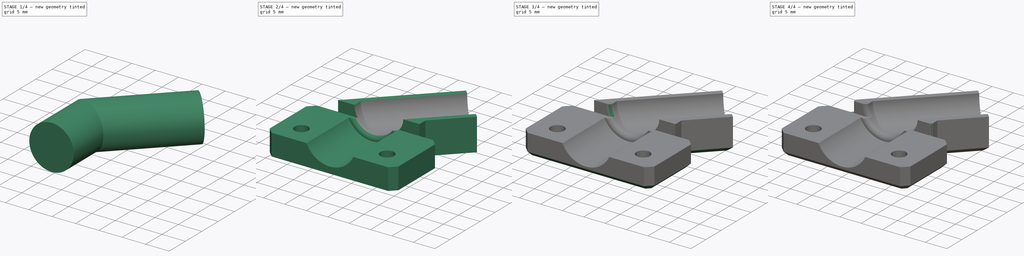
[diagram: build sequence overview — one tinted view per stage of 4, left to right]
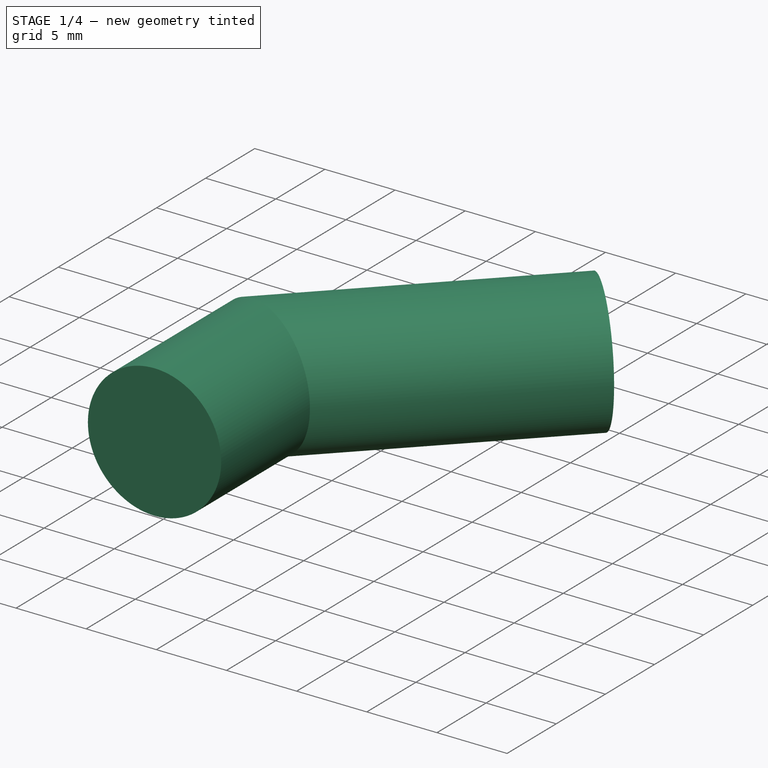
[diagram: stage 1 of 4 — iso view after this stage's code; geometry added in this stage tinted green]
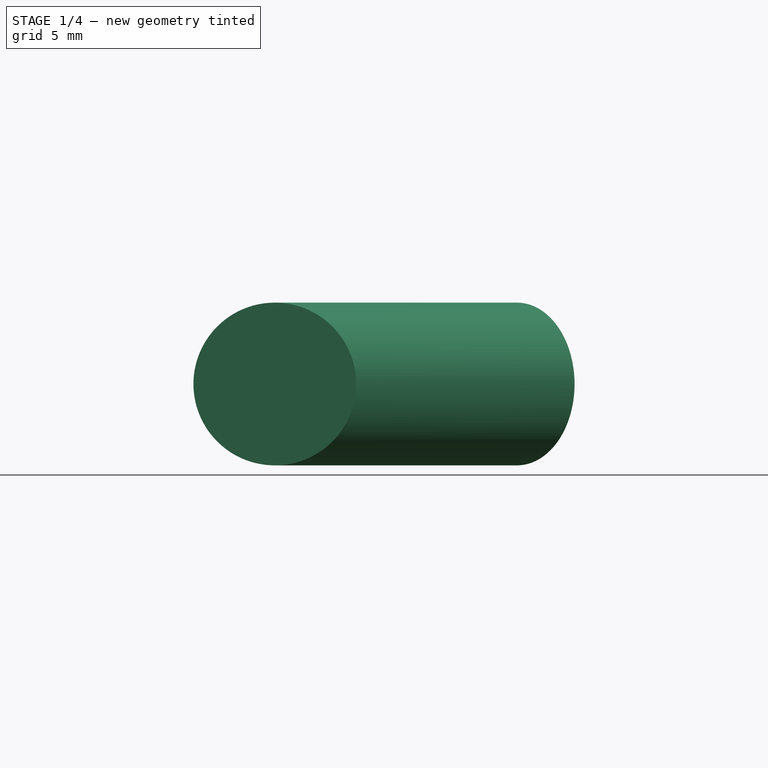
[diagram: stage 1 of 4 — front view after this stage's code; geometry added in this stage tinted green]
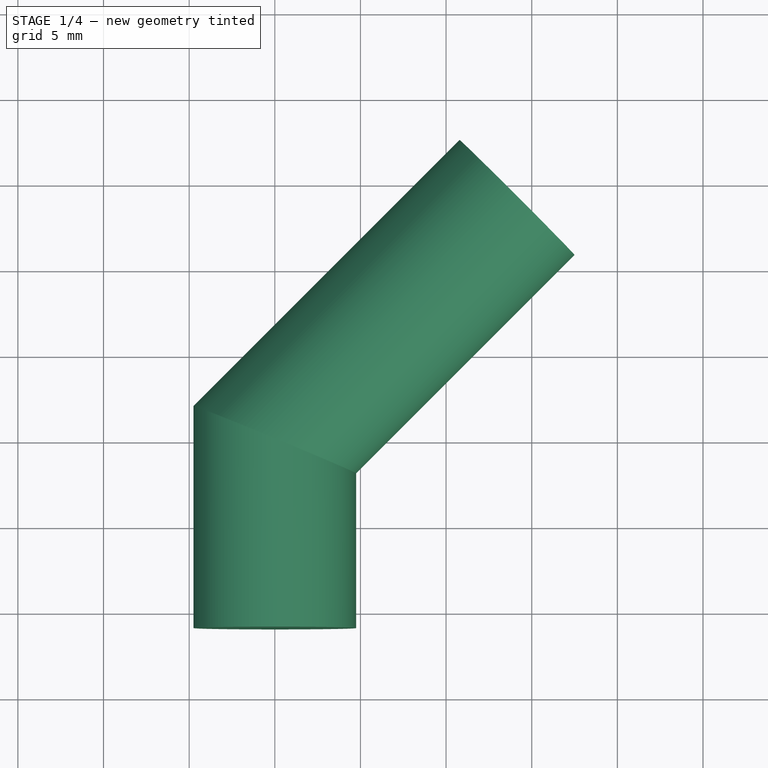
[diagram: stage 1 of 4 — top view after this stage's code; geometry added in this stage tinted green]
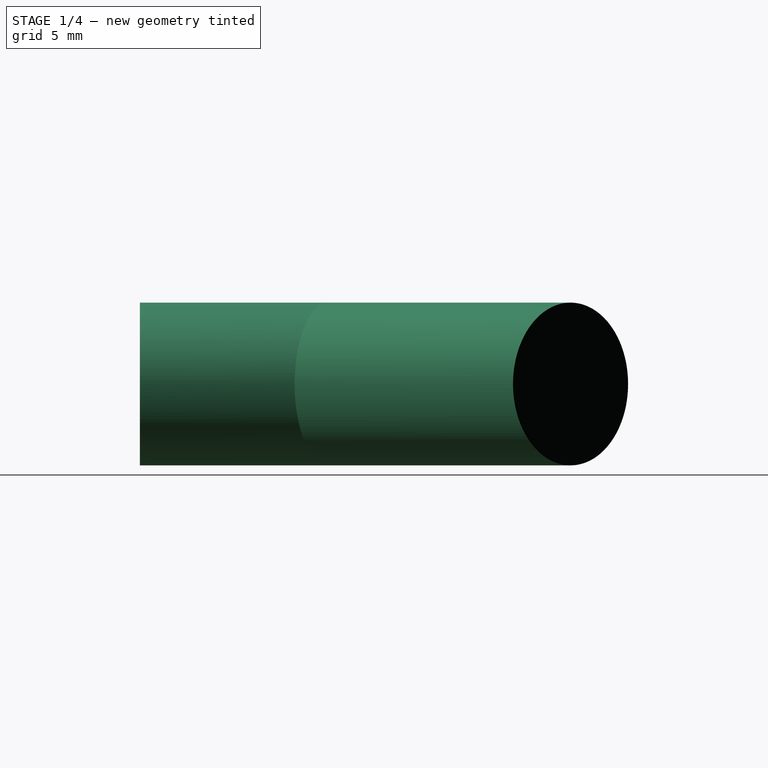
[diagram: stage 1 of 4 — right view after this stage's code; geometry added in this stage tinted green]
FCSTD DOCUMENT  (FreeCAD 0.16R6707 (Git))
Label: cables_soporte_titan
License: CreativeCommons Attribution-NonCommercial-ShareAlike
LicenseURL: http://creativecommons.org/licenses/by-nc-sa/4.0/
objects: Sketcher::SketchObject×5, PartDesign::Fillet×4, PartDesign::Pad×2, PartDesign::Chamfer×2, Part::Sweep×1, Part::Cut×1, PartDesign::Pocket×1
note: 19 computed .brp shape members not serialized (recipe doc carries the construction recipe); baked Part::Feature solids carry a one-line shape summary decoded from their .brp

FEATURE [Sketcher::SketchObject] Sketch
  sketch-geometry (15):
    g0: Circle CenterX=-10 CenterY=-5.2 CenterZ=0 NormalX=0 NormalY=0 NormalZ=1 Radius=1.6
    g1: Circle CenterX=10 CenterY=-5.2 CenterZ=0 NormalX=0 NormalY=0 NormalZ=1 Radius=1.6
    g2: LineSegment StartX=-15 StartY=3.58579 StartZ=0 EndX=-15 EndY=-8.58579 EndZ=0
    g3: LineSegment StartX=-15 StartY=-8.58579 StartZ=0 EndX=-13.5858 EndY=-10 EndZ=0
    g4: LineSegment StartX=-13.5858 StartY=-10 StartZ=0 EndX=13.5858 EndY=-10 EndZ=0
    g5: LineSegment StartX=13.5858 StartY=-10 StartZ=0 EndX=15 EndY=-8.58579 EndZ=0
    g6: LineSegment StartX=15 StartY=-8.58579 StartZ=0 EndX=15 EndY=3.58579 EndZ=0
    g7: LineSegment StartX=15 StartY=3.58579 StartZ=0 EndX=13.5858 EndY=5 EndZ=0
    g8: LineSegment StartX=13.5858 StartY=5 StartZ=0 EndX=10.3848 EndY=5 EndZ=0
    g9: LineSegment StartX=10.3848 StartY=5 StartZ=0 EndX=10.3848 EndY=7 EndZ=0
    g10: LineSegment StartX=10.3848 StartY=7 StartZ=0 EndX=17.4558 EndY=14.0711 EndZ=0
    g11: LineSegment StartX=17.4558 StartY=14.0711 StartZ=0 EndX=8.97056 EndY=22.5563 EndZ=0
    g12: LineSegment StartX=8.97056 StartY=22.5563 StartZ=0 EndX=-8.58579 EndY=5 EndZ=0
    g13: LineSegment StartX=-8.58579 StartY=5 StartZ=0 EndX=-13.5858 EndY=5 EndZ=0
    g14: LineSegment StartX=-13.5858 StartY=5 StartZ=0 EndX=-15 EndY=3.58579 EndZ=0
  constraints (43):
    c: DistanceX(g0,g-1) = 10
    c: Radius(g1) = 1.6
    c: Vertical(g2)
    c: Coincident(g2,g3)
    c: Coincident(g3,g4)
    c: Horizontal(g4)
    c: Coincident(g4,g5)
    c: Coincident(g5,g6)
    c: Vertical(g6)
    c: Coincident(g6,g7)
    c: Coincident(g7,g8)
    c: Horizontal(g8)
    c: Coincident(g8,g9)
    c: Coincident(g9,g10)
    c: Coincident(g10,g11)
    c: Coincident(g11,g12)
    c: Coincident(g12,g13)
    c: Horizontal(g13)
    c: Coincident(g13,g14)
    c: Coincident(g14,g2)
    c: Parallel(g12,g10)
    c: Perpendicular(g11,g12)
    c: Equal(g5,g14)
    c: Equal(g14,g3)
    c: Equal(g3,g7)
    c: Parallel(g3,g7)
    c: Parallel(g14,g5)
    c: Perpendicular(g5,g7)
    c: Symmetric(g13,g7,g-2)
    c: Angle(g4,g3) = 2.35619
    c: Equal(g0,g1)
    c: Distance(g11) = 12
    c: Vertical(g9)
    c: DistanceX(g2,g0) = 5
    c: DistanceY(g9,g9) = 2
    c: Distance(g10) = 10
    c: Distance(g14) = 2
    c: DistanceX(g13,g13) = 5
    c: Angle(g12,g13) = 2.35619
    c: Symmetric(g1,g0,g-2)
    c: DistanceY(g-1,g13) = 5
    c: DistanceY(g3,g-1) = 10
    c: DistanceY(g0,g-1) = 5.2
FEATURE [PartDesign::Pad] Pad
  Length = 5
  Length2 = 100
  Sketch = -> Sketch
  Type = 0
FEATURE [Sketcher::SketchObject] Sketch001
  ExternalGeometry = -> [Pad]
  Placement = pos=(0,0,5) rot=(0,0,1;0rad)
  Support = -> Pad [Face17]
  sketch-geometry (5):
    g0: LineSegment StartX=-8.58579 StartY=5 StartZ=0 EndX=8.97056 EndY=22.5563 EndZ=0
    g1: LineSegment StartX=8.97056 StartY=22.5563 StartZ=0 EndX=17.4558 EndY=14.0711 EndZ=0
    g2: LineSegment StartX=17.4558 StartY=14.0711 StartZ=0 EndX=10.3848 EndY=7 EndZ=0
    g3: LineSegment StartX=10.3848 StartY=7 StartZ=0 EndX=10.3848 EndY=5 EndZ=0
    g4: LineSegment StartX=10.3848 StartY=5 StartZ=0 EndX=-8.58579 EndY=5 EndZ=0
  constraints (10):
    c: Coincident(g0,g1)
    c: Coincident(g1,g2)
    c: Coincident(g2,g3)
    c: Coincident(g3,g4)
    c: Coincident(g4,g0)
    c: Coincident(g-3,g0)
    c: Coincident(g-5,g3)
    c: Coincident(g2,g-5)
    c: Coincident(g1,g-4)
    c: Coincident(g-3,g0)
FEATURE [PartDesign::Pad] Pad001
  Length = 2.5
  Length2 = 100
  Sketch = -> Sketch001
  Type = 0
FEATURE [Sketcher::SketchObject] Sketch002
  ExternalGeometry = -> [Pad001]
  Placement = pos=(15.7635,15.7635,6.6e-11) rot=(0.281085,0.678598,0.678598;2.59356rad)
  Support = -> Pad001 [Face18]
  sketch-geometry (1):
    g0: Circle CenterX=3.6066 CenterY=7.5 CenterZ=0 NormalX=0 NormalY=0 NormalZ=1 Radius=4.75
  constraints (3):
    c: PointOnObject(g0,g-3)
    c: Radius(g0) = 4.75
    c: DistanceX(g-3,g0) = 6
FEATURE [Sketcher::SketchObject] Sketch003
  ExternalGeometry = -> [Pad001]
  Placement = pos=(0,0,7.5) rot=(0,0,1;0rad)
  Support = -> Pad001 [Face15]
  sketch-geometry (2):
    g0: LineSegment StartX=14.1421 StartY=19.2426 StartZ=0 EndX=0 EndY=5.10051 EndZ=0
    g1: LineSegment StartX=0 StartY=-5.89949 StartZ=0 EndX=0 EndY=5.10051 EndZ=0
  constraints (6):
    c: PointOnObject(g0,g-2)
    c: Coincident(g1,g0)
    c: Symmetric(g-4,g-4,g0)
    c: Distance(g0) = 20
    c: Vertical(g1)
    c: DistanceY(g1,g1) = 11
FEATURE [Part::Sweep] Sweep
  Frenet = false
  Sections = -> [Sketch002]
  Solid = true
  Spine = -> Sketch003 [Edge1,Edge2]
  Transition = 1
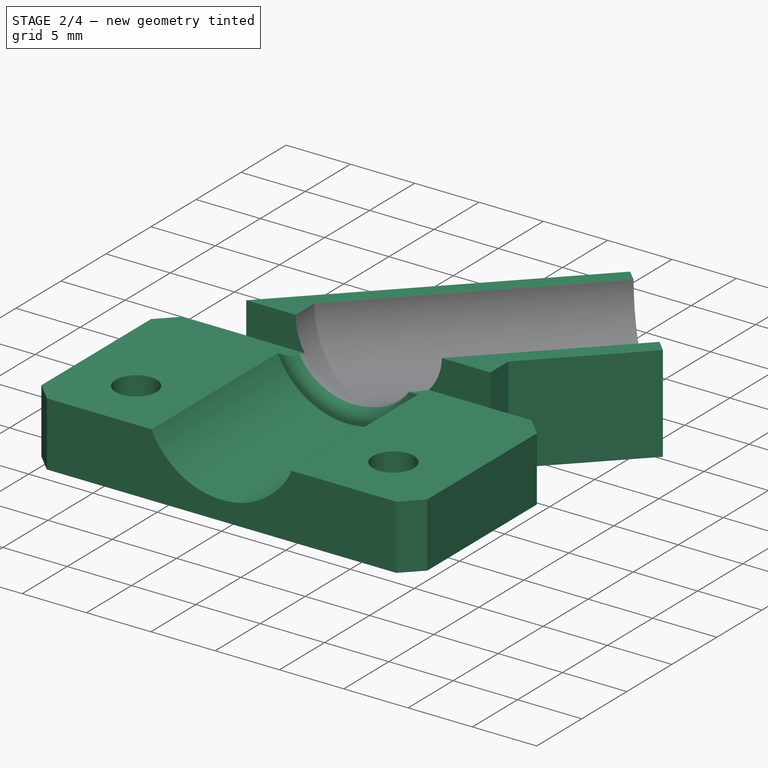
[diagram: stage 2 of 4 — iso view after this stage's code; geometry added in this stage tinted green]
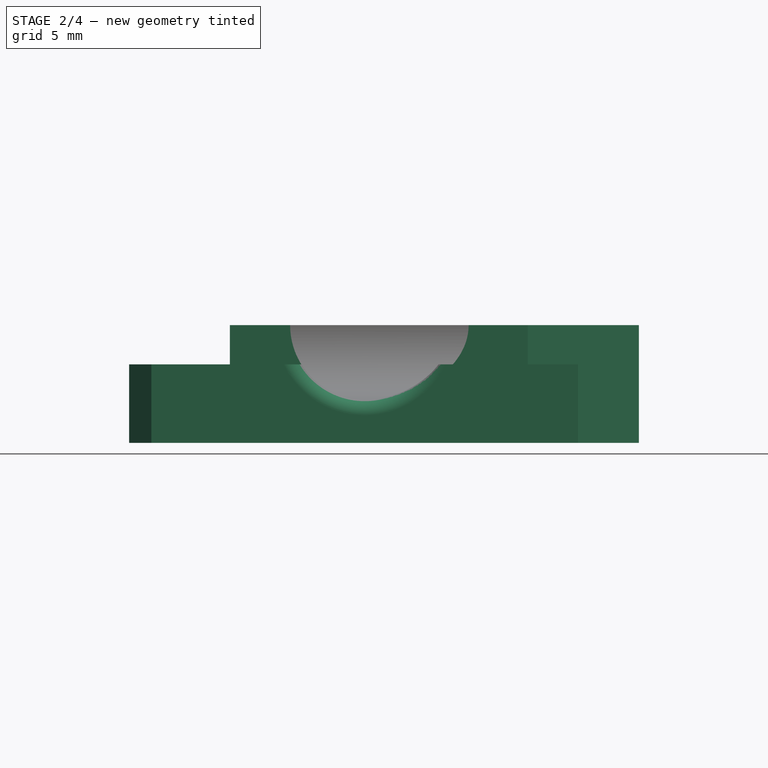
[diagram: stage 2 of 4 — front view after this stage's code; geometry added in this stage tinted green]
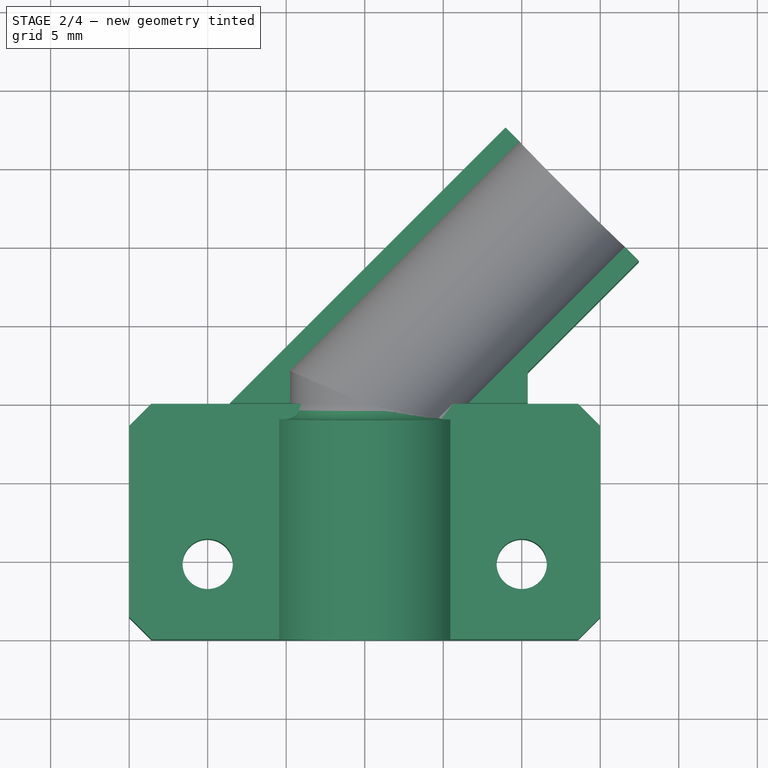
[diagram: stage 2 of 4 — top view after this stage's code; geometry added in this stage tinted green]
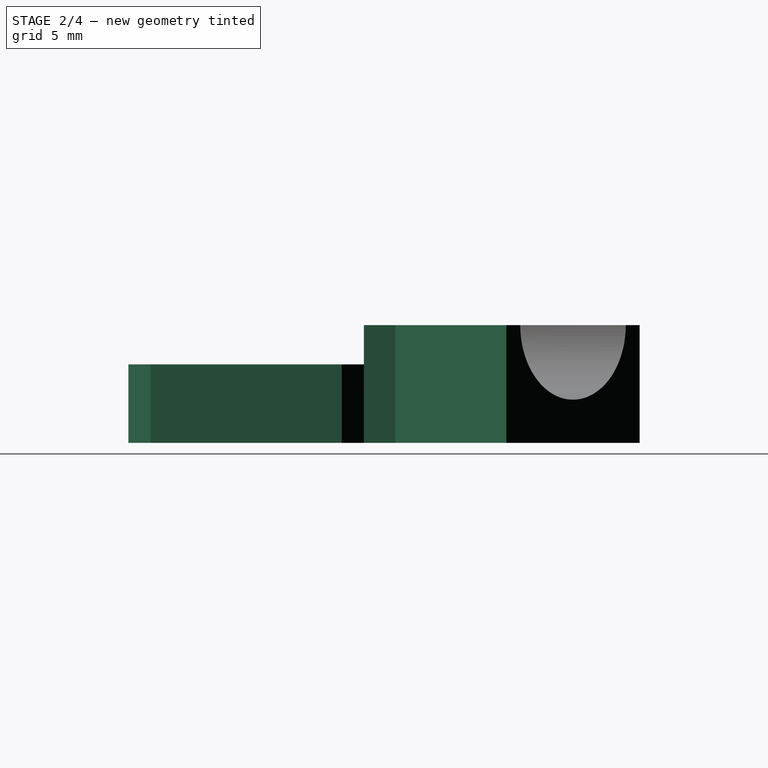
[diagram: stage 2 of 4 — right view after this stage's code; geometry added in this stage tinted green]
FEATURE [Part::Cut] Cut
  Base = -> Pad001
  Tool = -> Sweep
FEATURE [Sketcher::SketchObject] Sketch004
  ExternalGeometry = -> [Cut]
  Placement = pos=(0,-10,0) rot=(1,0,0;1.5708rad)
  Support = -> Cut [Face7]
  sketch-geometry (1):
    g0: Circle CenterX=0 CenterY=7.5 CenterZ=0 NormalX=0 NormalY=0 NormalZ=1 Radius=6
  constraints (2):
    c: Coincident(g0,g-3)
    c: Radius(g0) = 6
FEATURE [PartDesign::Pocket] Pocket
  Length = 14
  Sketch = -> Sketch004
  Type = 0
FEATURE [PartDesign::Fillet] Fillet
  Base = -> Pocket [Edge60]
  Radius = 1
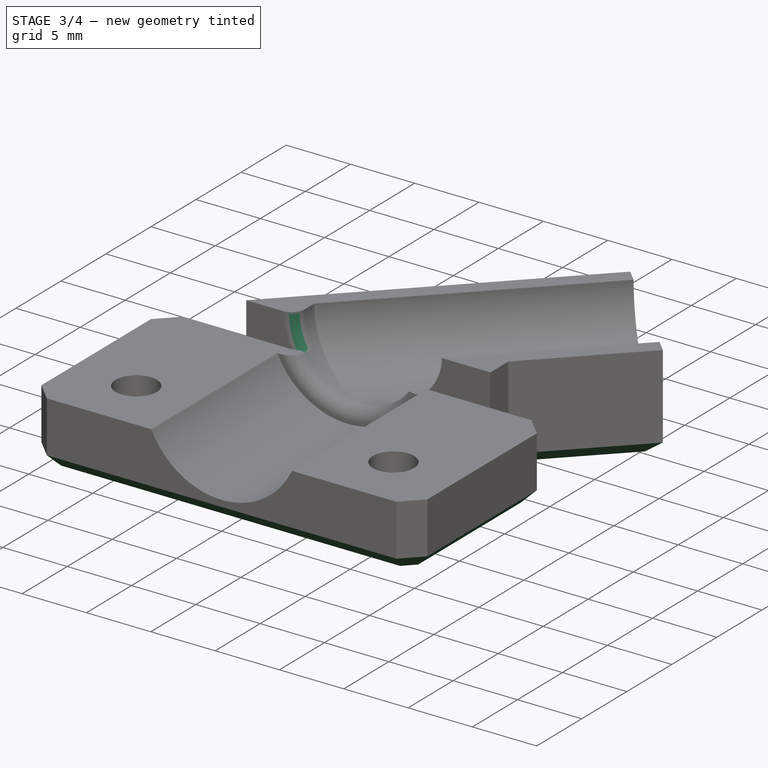
[diagram: stage 3 of 4 — iso view after this stage's code; geometry added in this stage tinted green]
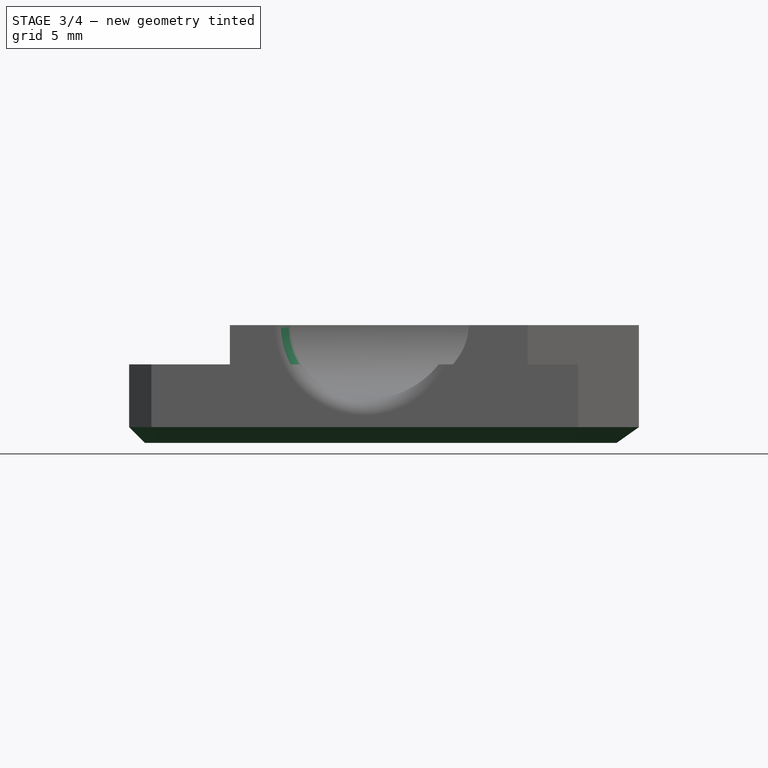
[diagram: stage 3 of 4 — front view after this stage's code; geometry added in this stage tinted green]
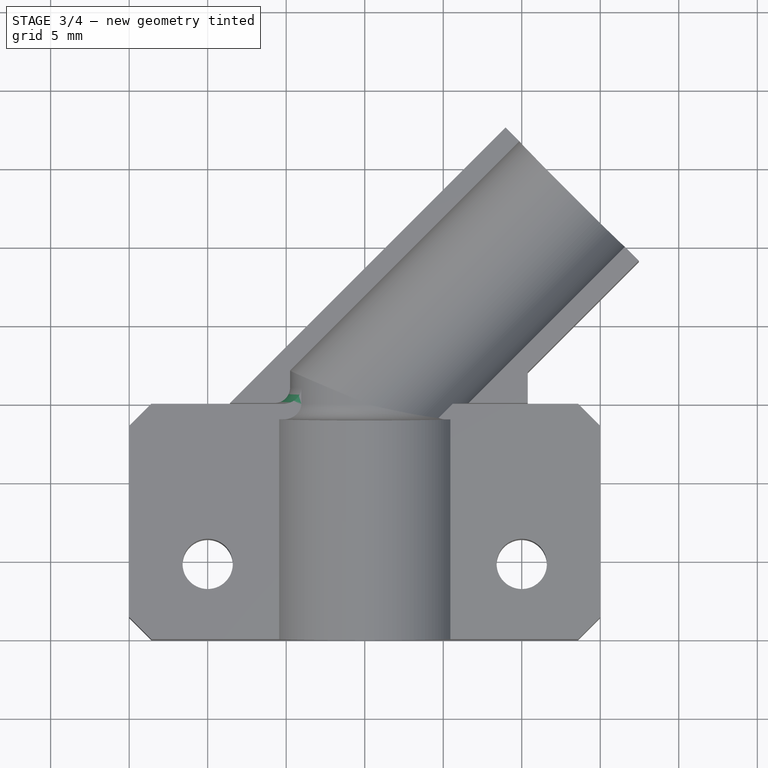
[diagram: stage 3 of 4 — top view after this stage's code; geometry added in this stage tinted green]
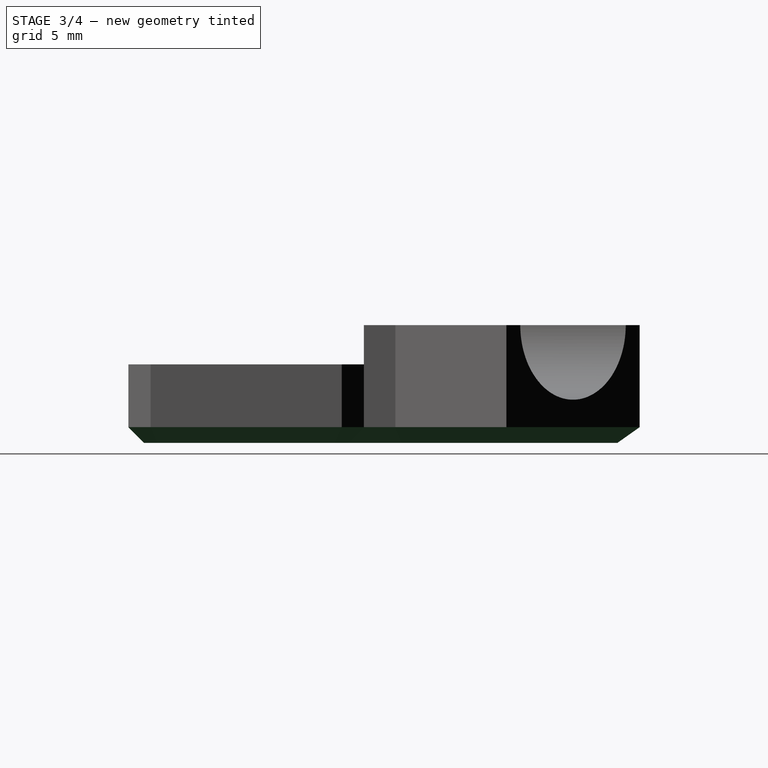
[diagram: stage 3 of 4 — right view after this stage's code; geometry added in this stage tinted green]
FEATURE [PartDesign::Fillet] Fillet001
  Base = -> Fillet [Edge21]
  Radius = 1
FEATURE [PartDesign::Chamfer] Chamfer
  Base = -> Fillet001 [Edge38,Edge48,Edge49,Edge51,Edge50,Edge52,Edge53,Edge54,Edge44,Edge19,Edge26,Edge31,Edge35]
  Size = 1
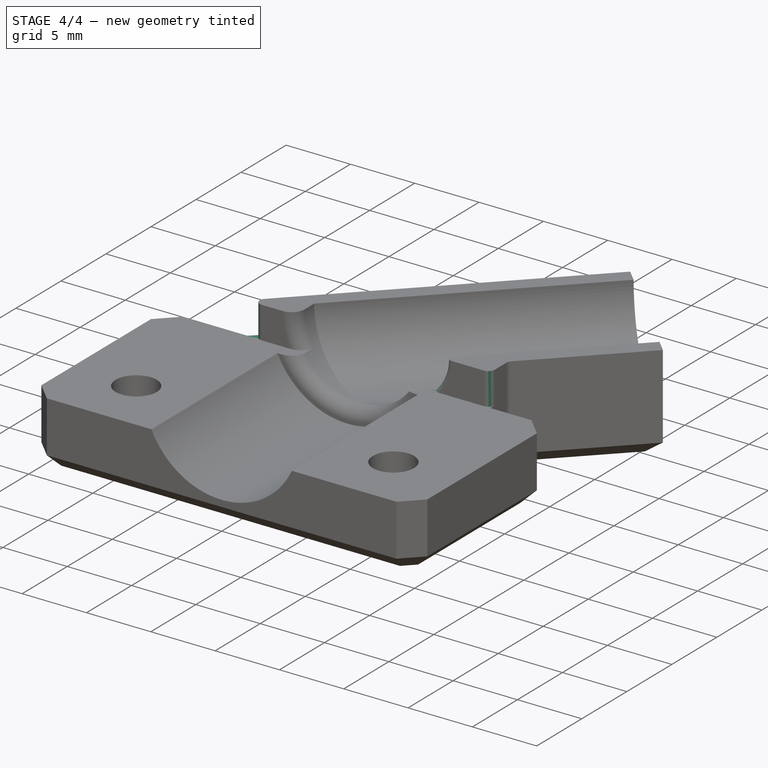
[diagram: stage 4 of 4 — iso view after this stage's code; geometry added in this stage tinted green]
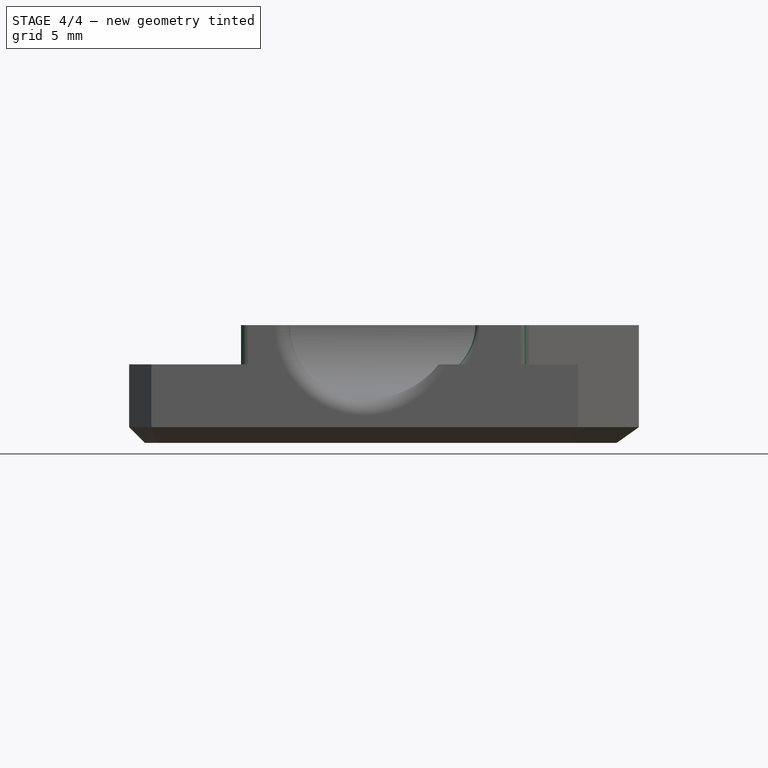
[diagram: stage 4 of 4 — front view after this stage's code; geometry added in this stage tinted green]
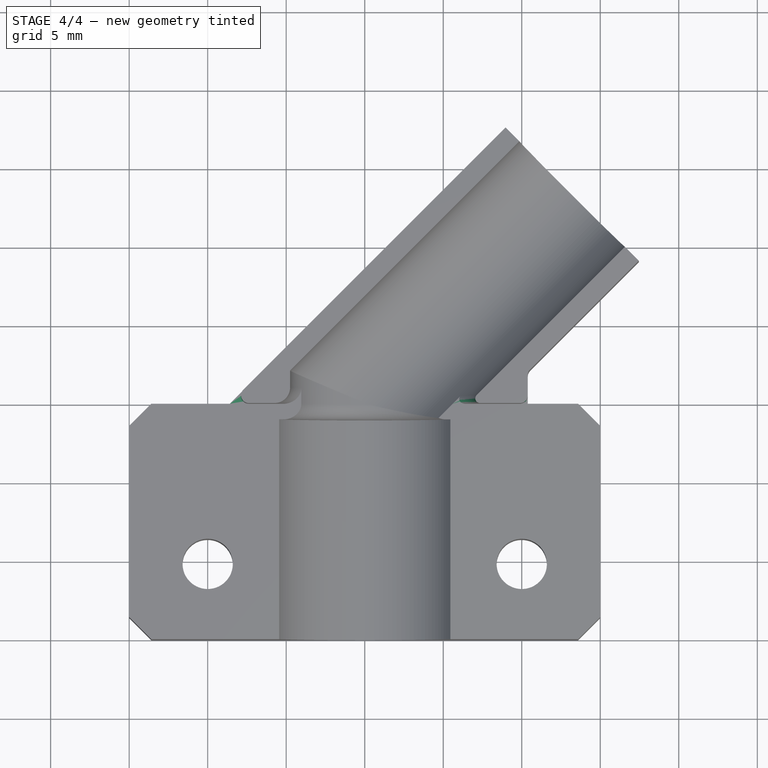
[diagram: stage 4 of 4 — top view after this stage's code; geometry added in this stage tinted green]
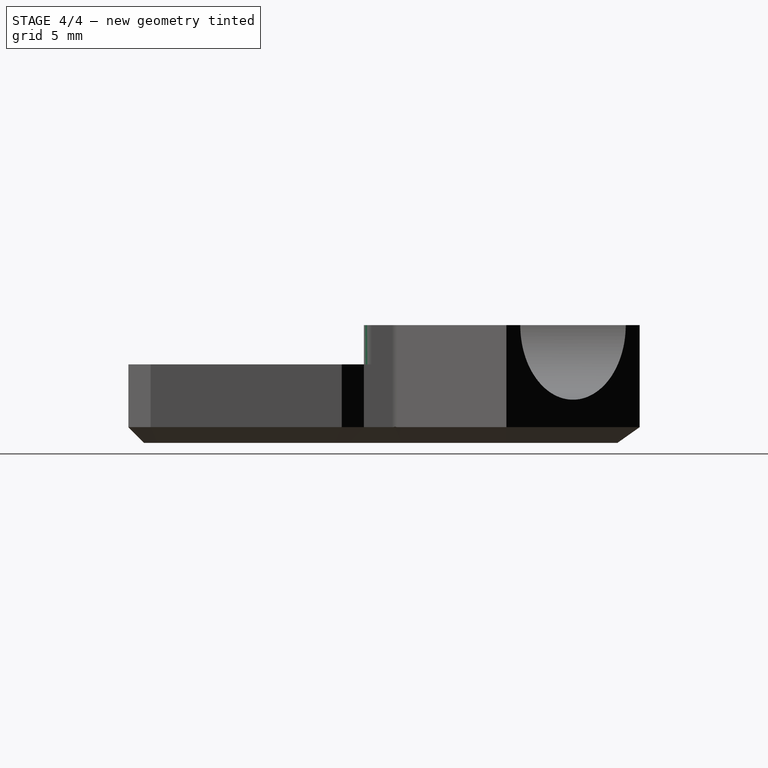
[diagram: stage 4 of 4 — right view after this stage's code; geometry added in this stage tinted green]
FEATURE [PartDesign::Chamfer] Chamfer001
  Base = -> Chamfer [Edge49,Edge48]
  Size = 0.25
FEATURE [PartDesign::Fillet] Fillet002
  Base = -> Chamfer001 [Edge72,Edge73,Edge71]
  Radius = 0.5
FEATURE [PartDesign::Fillet] Fillet003
  Base = -> Fillet002 [Edge83]
  Radius = 0.3
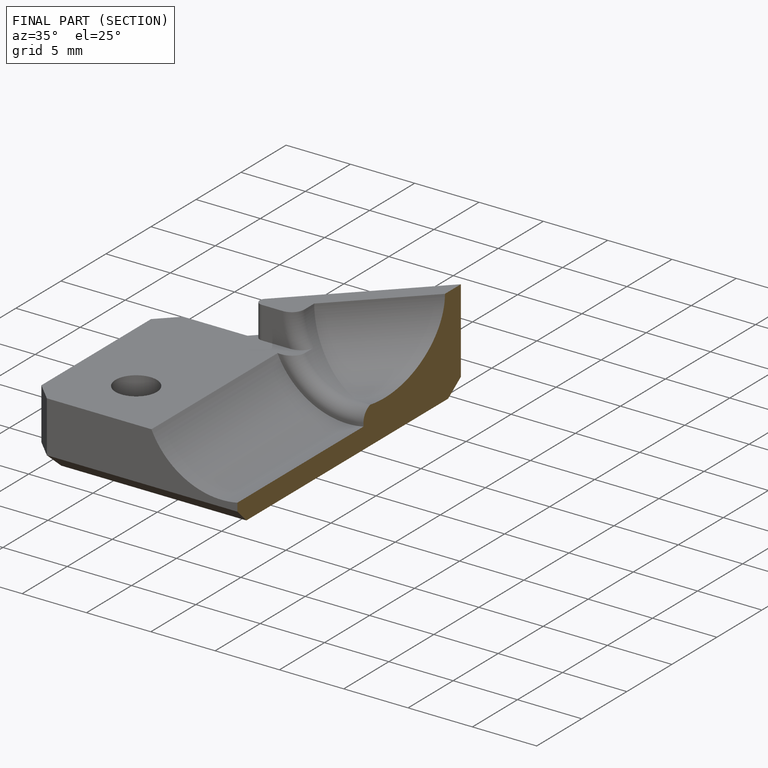
[diagram: finished part — half-section view (interior)]
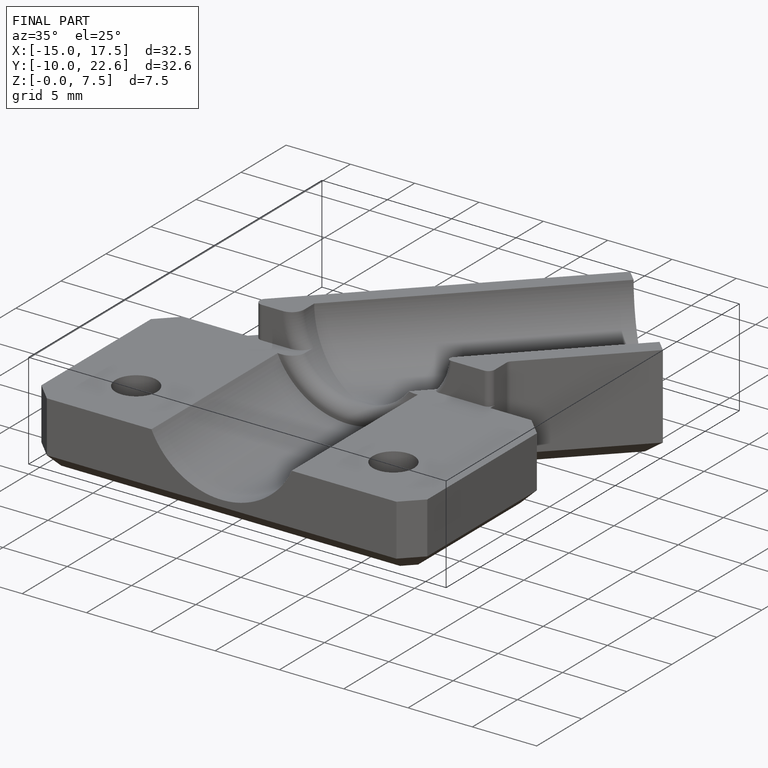
[diagram: finished part — iso view with bounding-box wireframe]
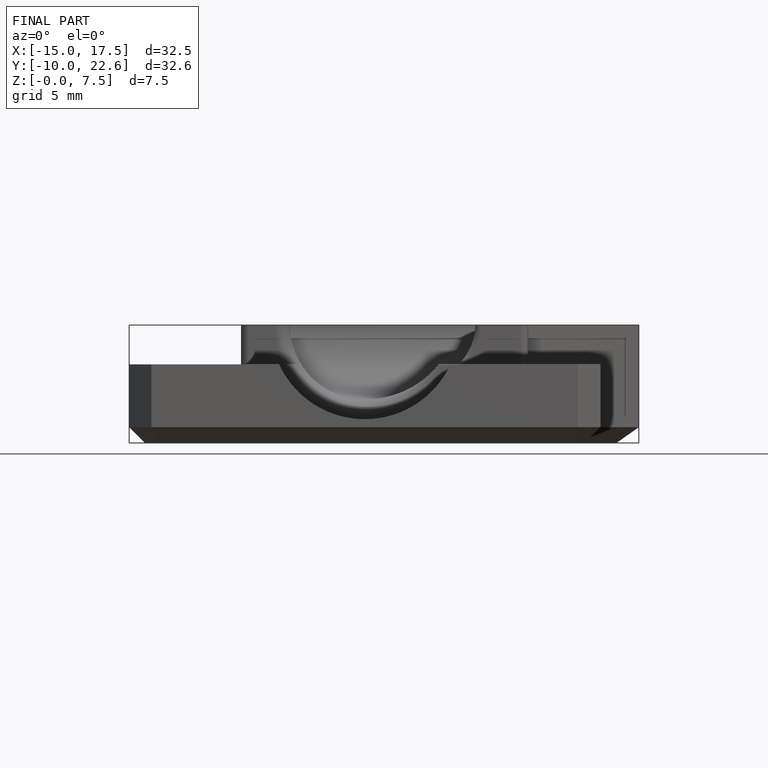
[diagram: finished part — front view with bounding-box wireframe]
